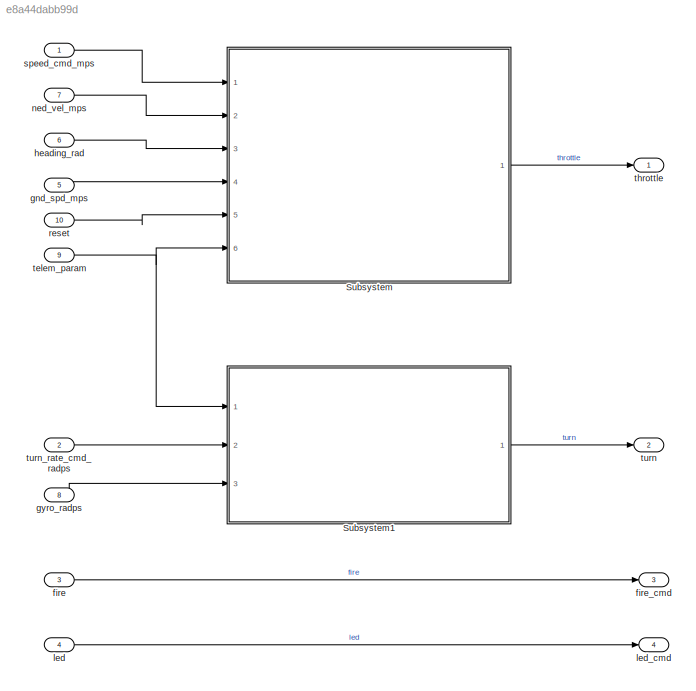
MODEL slx_e8a44dabb99d
KIND model
CONFIG AbsTol = auto
CONFIG EnableMultiTasking = off
CONFIG FixedStep = auto
CONFIG MaxStep = auto
CONFIG MinStep = auto
CONFIG RelTol = 1e-3
CONFIG SampleTimeConstraint = Unconstrained
CONFIG SolverName = FixedStepAuto
CONFIG StartTime = 0.0
CONFIG StopTime = 10.0
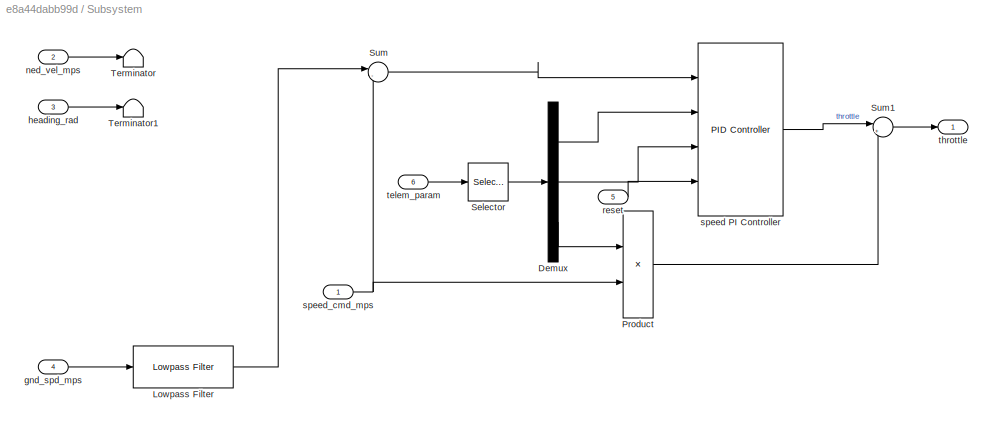
BLOCK [SubSystem] Subsystem
  Ports = [6, 1]
  RequestExecContextInheritance = off
BLOCK [Demux] Subsystem/Demux
  Outputs = 3
  Ports = [1, 3]
BLOCK [Reference] Subsystem/Lowpass Filter  REF=dspfdesign/Lowpass Filter
  Ports = [1, 1]
  SourceBlock = dspfdesign/Lowpass Filter
  SourceProductBaseCode = DS
  SourceType = dsp.simulink.LowpassFilter
BLOCK [Product] Subsystem/Product
  Ports = [2, 1]
BLOCK [Selector] Subsystem/Selector
  IndexMode = Zero-based
  IndexOptions = Index vector (dialog)
  Indices = [0 1 2]
  OutputSizes = 1
  Ports = [1, 1]
BLOCK [Sum] Subsystem/Sum
  Inputs = |-+
  Ports = [2, 1]
BLOCK [Sum] Subsystem/Sum1
  Inputs = |++
  Ports = [2, 1]
BLOCK [Terminator] Subsystem/Terminator
BLOCK [Terminator] Subsystem/Terminator1
BLOCK [Inport] Subsystem/gnd_spd_mps
  Port = 4
BLOCK [Inport] Subsystem/heading_rad
  Port = 3
BLOCK [Inport] Subsystem/ned_vel_mps
  Port = 2
BLOCK [Inport] Subsystem/reset
  Port = 5
BLOCK [Reference] Subsystem/speed PI Controller  REF=slpidlib/PID Controller
  Ports = [4, 1]
  SourceBlock = slpidlib/PID Controller
  SourceProductBaseCode = SL
  SourceType = PID 1dof
BLOCK [Inport] Subsystem/speed_cmd_mps
BLOCK [Inport] Subsystem/telem_param
  Port = 6
BLOCK [Outport] Subsystem/throttle
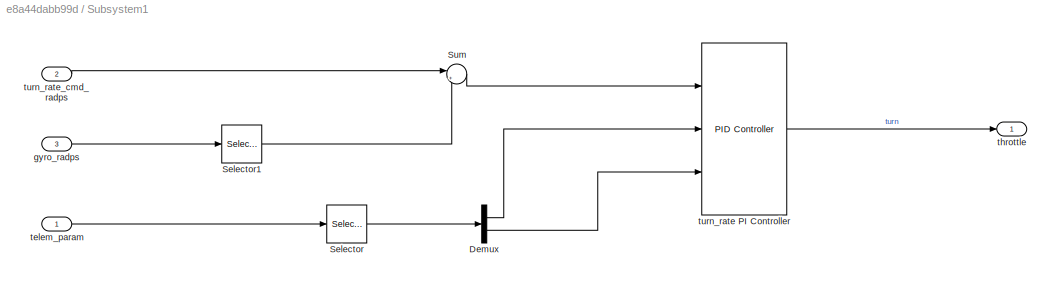
BLOCK [SubSystem] Subsystem1
  Ports = [3, 1]
  RequestExecContextInheritance = off
BLOCK [Demux] Subsystem1/Demux
  Outputs = 2
  Ports = [1, 2]
BLOCK [Selector] Subsystem1/Selector
  IndexMode = Zero-based
  IndexOptions = Index vector (dialog)
  Indices = [3 4]
  InputPortWidth = 24
  OutputSizes = 1
  Ports = [1, 1]
BLOCK [Selector] Subsystem1/Selector1
  IndexOptions = Index vector (dialog)
  Indices = 3
  InputPortWidth = 3
  OutputSizes = 1
  Ports = [1, 1]
BLOCK [Sum] Subsystem1/Sum
  Inputs = |+-
  Ports = [2, 1]
BLOCK [Inport] Subsystem1/gyro_radps
  Port = 3
BLOCK [Inport] Subsystem1/telem_param
BLOCK [Outport] Subsystem1/throttle
BLOCK [Reference] Subsystem1/turn_rate PI Controller  REF=slpidlib/PID Controller
  Ports = [3, 1]
  SourceBlock = slpidlib/PID Controller
  SourceProductBaseCode = SL
  SourceType = PID 1dof
BLOCK [Inport] Subsystem1/turn_rate_cmd_radps
  Port = 2
BLOCK [Inport] fire
  OutDataTypeStr = single
  Port = 3
BLOCK [Outport] fire_cmd
  Port = 3
BLOCK [Inport] gnd_spd_mps
  OutDataTypeStr = single
  Port = 5
BLOCK [Inport] gyro_radps
  OutDataTypeStr = single
  Port = 8
BLOCK [Inport] heading_rad
  OutDataTypeStr = single
  Port = 6
BLOCK [Inport] led
  OutDataTypeStr = single
  Port = 4
BLOCK [Outport] led_cmd
  Port = 4
BLOCK [Inport] ned_vel_mps
  OutDataTypeStr = single
  Port = 7
  PortDimensions = 3
BLOCK [Inport] reset
  OutDataTypeStr = boolean
  Port = 10
BLOCK [Inport] speed_cmd_mps
BLOCK [Inport] telem_param
  Port = 9
BLOCK [Outport] throttle
BLOCK [Outport] turn
  Port = 2
BLOCK [Inport] turn_rate_cmd_radps
  Port = 2
LINE Subsystem/Demux:1 -> Subsystem/speed PI Controller:2
LINE Subsystem/Demux:2 -> Subsystem/speed PI Controller:3
LINE Subsystem/Demux:3 -> Subsystem/Product:1
LINE Subsystem/Lowpass Filter:1 -> Subsystem/Sum:1
LINE Subsystem/Product:1 -> Subsystem/Sum1:2
LINE Subsystem/Selector:1 -> Subsystem/Demux:1
LINE Subsystem/Sum1:1 -> Subsystem/throttle:1
LINE Subsystem/Sum:1 -> Subsystem/speed PI Controller:1
LINE Subsystem/gnd_spd_mps:1 -> Subsystem/Lowpass Filter:1
LINE Subsystem/heading_rad:1 -> Subsystem/Terminator1:1
LINE Subsystem/ned_vel_mps:1 -> Subsystem/Terminator:1
LINE Subsystem/reset:1 -> Subsystem/speed PI Controller:4
LINE Subsystem/speed PI Controller:1 -> Subsystem/Sum1:1
NET Subsystem/speed_cmd_mps:1 -> Subsystem/Product:2, Subsystem/Sum:2
LINE Subsystem/telem_param:1 -> Subsystem/Selector:1
LINE Subsystem1/Demux:1 -> Subsystem1/turn_rate PI Controller:2
LINE Subsystem1/Demux:2 -> Subsystem1/turn_rate PI Controller:3
LINE Subsystem1/Selector1:1 -> Subsystem1/Sum:2
LINE Subsystem1/Selector:1 -> Subsystem1/Demux:1
LINE Subsystem1/Sum:1 -> Subsystem1/turn_rate PI Controller:1
LINE Subsystem1/gyro_radps:1 -> Subsystem1/Selector1:1
LINE Subsystem1/telem_param:1 -> Subsystem1/Selector:1
LINE Subsystem1/turn_rate PI Controller:1 -> Subsystem1/throttle:1
LINE Subsystem1/turn_rate_cmd_radps:1 -> Subsystem1/Sum:1
LINE Subsystem1:1 -> turn:1
LINE Subsystem:1 -> throttle:1
LINE fire:1 -> fire_cmd:1
LINE gnd_spd_mps:1 -> Subsystem:4
LINE gyro_radps:1 -> Subsystem1:3
LINE heading_rad:1 -> Subsystem:3
LINE led:1 -> led_cmd:1
LINE ned_vel_mps:1 -> Subsystem:2
LINE reset:1 -> Subsystem:5
LINE speed_cmd_mps:1 -> Subsystem:1
NET telem_param:1 -> Subsystem1:1, Subsystem:6
LINE turn_rate_cmd_radps:1 -> Subsystem1:2
note: NET lines group one-source signal fan-out (src -> all destinations, sorted); 1:1 wires keep LINE
